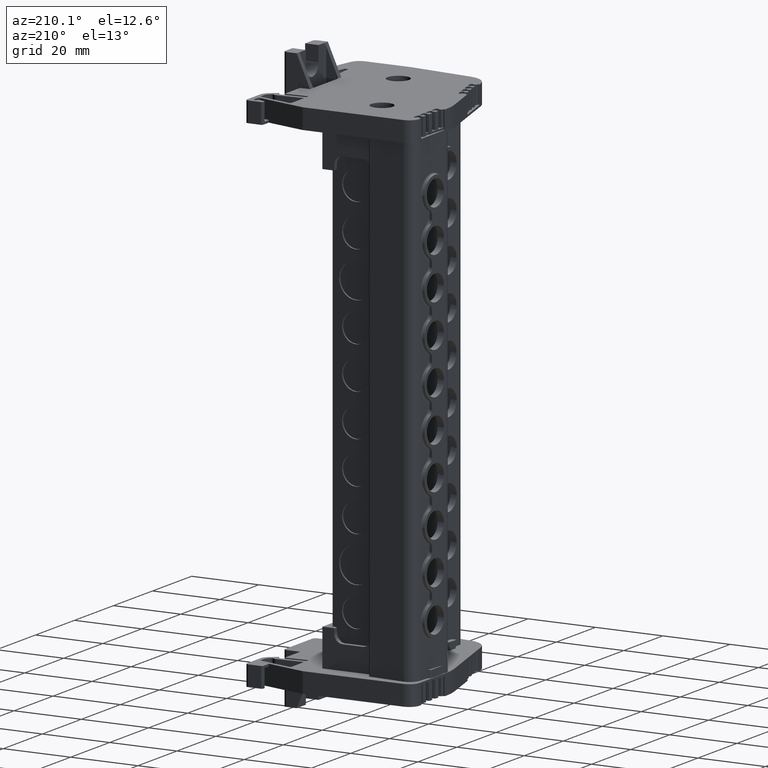
[diagram: clean part render]
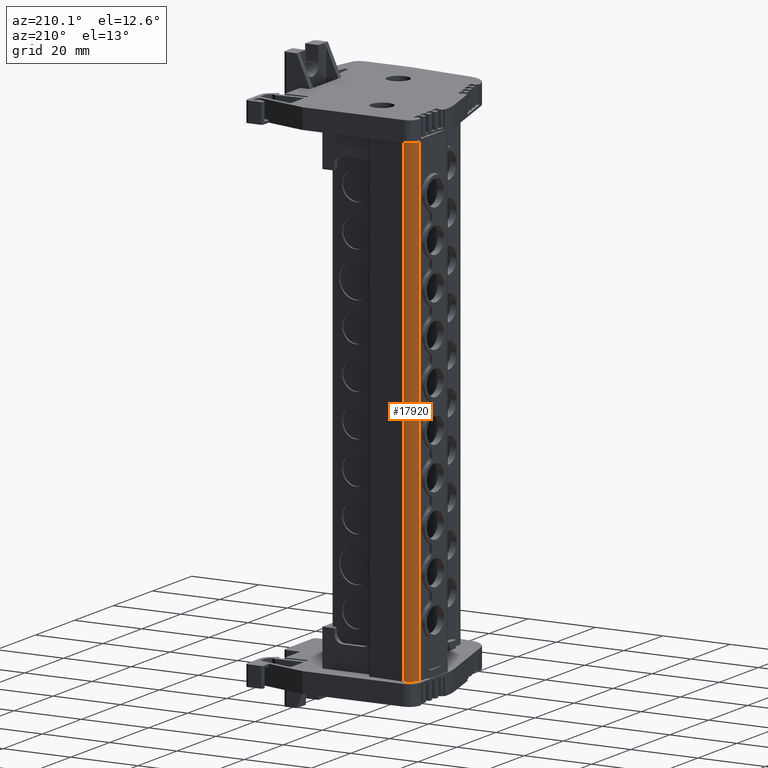
[diagram: same view with one face highlighted and labeled with its STEP entity id]
A machine part, auxiliary view. The second image highlights one B-rep face of the part: STEP entity #17920.
In plain terms, the highlighted cylindrical surface (edge-blend (fillet) strip) has radius 3 mm, axis along (0, 0, -1).
Its self-contained STEP definition (entity closure, byte-faithful):
#5533 = EDGE_CURVE ( 'NONE', #59119, #59117, #80165, .T. ) ;
#5566 = EDGE_CURVE ( 'NONE', #59086, #59127, #80189, .T. ) ;
#5650 = EDGE_CURVE ( 'NONE', #59119, #59127, #50483, .T. ) ;
#6339 = EDGE_CURVE ( 'NONE', #59117, #59086, #38805, .T. ) ;
#8046 = ORIENTED_EDGE ( 'NONE', *, *, #5533, .F. ) ;
#8118 = ORIENTED_EDGE ( 'NONE', *, *, #5650, .T. ) ;
#8209 = ORIENTED_EDGE ( 'NONE', *, *, #5566, .F. ) ;
#8220 = ORIENTED_EDGE ( 'NONE', *, *, #6339, .F. ) ;
#17920 = ADVANCED_FACE ( 'NONE', ( #32156 ), #32142, .T. ) ;
#32128 = DIRECTION ( 'NONE',  ( 0.0000000000000000000, 1.000000000000000000, 2.035408878479451800E-013 ) ) ;
#32142 = CYLINDRICAL_SURFACE ( 'NONE', #58975, 3.000000000000002700 ) ;
#32148 = CARTESIAN_POINT ( 'NONE',  ( 1870.550968804878000, 806.0033889994675700, 116.6204558807829600 ) ) ;
#32149 = DIRECTION ( 'NONE',  ( 1.346109084957222500E-014, 2.026694229324841800E-013, -1.000000000000000000 ) ) ;
#32156 = FACE_OUTER_BOUND ( 'NONE', #52122, .T. ) ;
#38744 = DIRECTION ( 'NONE',  ( -4.237872557465684100E-015, 3.707684141392724300E-016, -1.000000000000000000 ) ) ;
#38771 = CARTESIAN_POINT ( 'NONE',  ( 1867.562384870283000, 806.2648580528569900, 116.6204558807867600 ) ) ;
#38805 = LINE ( 'NONE', #38771, #48873 ) ;
#48873 = VECTOR ( 'NONE', #38744, 1000.000000000000000 ) ;
#50462 = CARTESIAN_POINT ( 'NONE',  ( 1870.550968804878000, 809.0033889994675700, 116.6204558807835700 ) ) ;
#50468 = DIRECTION ( 'NONE',  ( 1.346109084957222500E-014, 2.026694229324841800E-013, -1.000000000000000000 ) ) ;
#50483 = LINE ( 'NONE', #50462, #80201 ) ;
#50959 = CARTESIAN_POINT ( 'NONE',  ( 1870.550968804877600, 806.0033889994610900, 148.5203038005997800 ) ) ;
#50967 = DIRECTION ( 'NONE',  ( 0.0000000000000000000, 1.000000000000000000, 2.035408878479451800E-013 ) ) ;
#51032 = DIRECTION ( 'NONE',  ( -1.346109084957222500E-014, -2.026694229324841800E-013, 1.000000000000000000 ) ) ;
#51066 = DIRECTION ( 'NONE',  ( 1.346109084957222500E-014, 2.026694229324841800E-013, -1.000000000000000000 ) ) ;
#51112 = CARTESIAN_POINT ( 'NONE',  ( 1870.550968804879600, 806.0033889994899700, 5.998782997043802500 ) ) ;
#51137 = DIRECTION ( 'NONE',  ( 0.0000000000000000000, 1.000000000000000000, 2.026735261099567800E-013 ) ) ;
#52122 = EDGE_LOOP ( 'NONE', ( #8046, #8118, #8209, #8220 ) ) ;
#58975 = AXIS2_PLACEMENT_3D ( 'NONE', #32148, #32149, #32128 ) ;
#59086 = VERTEX_POINT ( 'NONE', #70893 ) ;
#59117 = VERTEX_POINT ( 'NONE', #70888 ) ;
#59119 = VERTEX_POINT ( 'NONE', #70895 ) ;
#59127 = VERTEX_POINT ( 'NONE', #70911 ) ;
#70888 = CARTESIAN_POINT ( 'NONE',  ( 1867.562384870282600, 806.2648580528497200, 148.5203038005997800 ) ) ;
#70893 = CARTESIAN_POINT ( 'NONE',  ( 1867.562384870283300, 806.2648580528641600, 5.998782997044109800 ) ) ;
#70895 = CARTESIAN_POINT ( 'NONE',  ( 1870.550968804878700, 809.0033889994610900, 148.5203038006003700 ) ) ;
#70911 = CARTESIAN_POINT ( 'NONE',  ( 1870.550968804878700, 809.0033889994899700, 5.998782997044410900 ) ) ;
#80129 = AXIS2_PLACEMENT_3D ( 'NONE', #51112, #51066, #51137 ) ;
#80165 = CIRCLE ( 'NONE', #80180, 3.000000000000002700 ) ;
#80180 = AXIS2_PLACEMENT_3D ( 'NONE', #50959, #51032, #50967 ) ;
#80189 = CIRCLE ( 'NONE', #80129, 3.000000000000002700 ) ;
#80201 = VECTOR ( 'NONE', #50468, 1000.000000000000000 ) ;